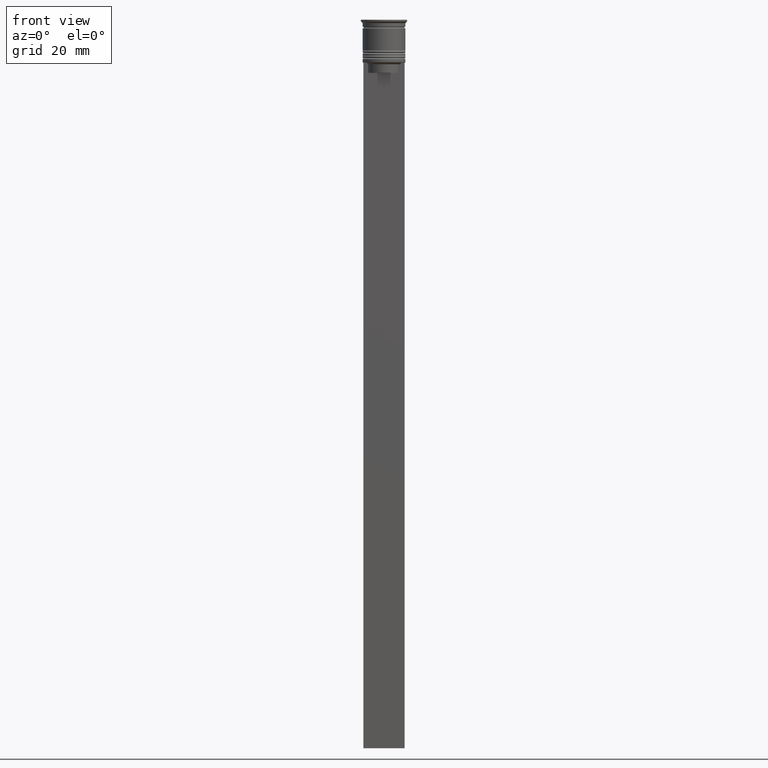
[diagram: clean part render]
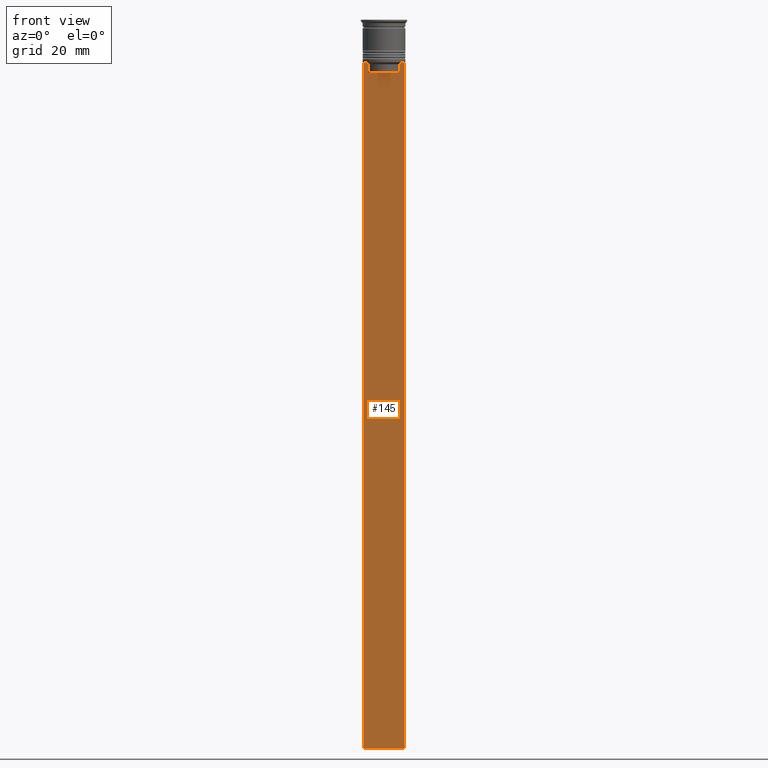
[diagram: same view with one face highlighted and labeled with its STEP entity id]
A machine part, front view. The second image highlights one B-rep face of the part: STEP entity #145.
In plain terms, the highlighted planar face has unit normal (0, -1, -0).
Its self-contained STEP definition (entity closure, byte-faithful):
#49 = ORIENTED_EDGE ( 'NONE', *, *, #2028, .F. ) ;
#50 = DIRECTION ( 'NONE',  ( 1.000000000000000000, 0.000000000000000000, 0.000000000000000000 ) ) ;
#51 = DIRECTION ( 'NONE',  ( -0.000000000000000000, -0.000000000000000000, 1.000000000000000000 ) ) ;
#71 = VECTOR ( 'NONE', #867, 1000.000000000000000 ) ;
#80 = CARTESIAN_POINT ( 'NONE',  ( -4.623040125285526436, -0.5000000000000017764, 0.000000000000000000 ) ) ;
#95 = ORIENTED_EDGE ( 'NONE', *, *, #628, .F. ) ;
#110 = VECTOR ( 'NONE', #1191, 1000.000000000000000 ) ;
#128 = LINE ( 'NONE', #293, #71 ) ;
#143 = VERTEX_POINT ( 'NONE', #1484 ) ;
#145 = ADVANCED_FACE ( 'NONE', ( #1665 ), #407, .T. ) ;
#201 = LINE ( 'NONE', #2043, #245 ) ;
#232 = LINE ( 'NONE', #1876, #2307 ) ;
#234 = CARTESIAN_POINT ( 'NONE',  ( 4.958169719475987947, -0.5000000000000017764, -12.66670967060858111 ) ) ;
#239 = VECTOR ( 'NONE', #1704, 1000.000000000000000 ) ;
#245 = VECTOR ( 'NONE', #1871, 1000.000000000000000 ) ;
#269 = VERTEX_POINT ( 'NONE', #1969 ) ;
#293 = CARTESIAN_POINT ( 'NONE',  ( 6.000000000000016875, -0.5000000000000017764, -212.5000000000000284 ) ) ;
#352 = LINE ( 'NONE', #391, #1230 ) ;
#358 = CARTESIAN_POINT ( 'NONE',  ( 6.000000000000016875, -0.5000000000000017764, -12.50000000000000000 ) ) ;
#381 = EDGE_LOOP ( 'NONE', ( #479, #49, #2052, #463, #95, #1526, #708, #1844, #907, #521 ) ) ;
#387 = B_SPLINE_CURVE_WITH_KNOTS ( 'NONE', 3,
 ( #2075, #979, #234, #1341 ),
 .UNSPECIFIED., .F., .F.,
 ( 4, 4 ),
 ( 0.02203698174624552780, 0.02275222543365896383 ),
 .UNSPECIFIED. ) ;
#391 = CARTESIAN_POINT ( 'NONE',  ( 4.623040125285526436, -0.5000000000000017764, 0.000000000000000000 ) ) ;
#407 = PLANE ( 'NONE',  #2211 ) ;
#410 = VERTEX_POINT ( 'NONE', #509 ) ;
#421 = CARTESIAN_POINT ( 'NONE',  ( -4.623040125285526436, -0.5000000000000017764, -13.00000000000000178 ) ) ;
#463 = ORIENTED_EDGE ( 'NONE', *, *, #1572, .F. ) ;
#479 = ORIENTED_EDGE ( 'NONE', *, *, #566, .F. ) ;
#509 = CARTESIAN_POINT ( 'NONE',  ( -5.999999999999983125, -0.5000000000000017764, -12.50000000000000000 ) ) ;
#521 = ORIENTED_EDGE ( 'NONE', *, *, #631, .F. ) ;
#566 = EDGE_CURVE ( 'NONE', #1280, #2275, #1990, .T. ) ;
#628 = EDGE_CURVE ( 'NONE', #1694, #143, #2044, .T. ) ;
#631 = EDGE_CURVE ( 'NONE', #2275, #1077, #1137, .T. ) ;
#708 = ORIENTED_EDGE ( 'NONE', *, *, #2248, .F. ) ;
#763 = CARTESIAN_POINT ( 'NONE',  ( 6.000000000000016875, -0.5000000000000017764, -0.4584054212077061097 ) ) ;
#782 = DIRECTION ( 'NONE',  ( 0.000000000000000000, -1.000000000000000000, -0.000000000000000000 ) ) ;
#797 = CARTESIAN_POINT ( 'NONE',  ( -4.958169823806760412, -0.5000000000000017764, -12.66670956677067927 ) ) ;
#826 = VERTEX_POINT ( 'NONE', #2185 ) ;
#842 = VECTOR ( 'NONE', #1496, 1000.000000000000000 ) ;
#867 = DIRECTION ( 'NONE',  ( -1.000000000000000000, 0.000000000000000000, 0.000000000000000000 ) ) ;
#907 = ORIENTED_EDGE ( 'NONE', *, *, #1092, .F. ) ;
#945 = LINE ( 'NONE', #1670, #1450 ) ;
#979 = CARTESIAN_POINT ( 'NONE',  ( 4.790630799407577634, -0.5000000000000017764, -12.83338098686238915 ) ) ;
#1002 = LINE ( 'NONE', #2300, #110 ) ;
#1029 = EDGE_CURVE ( 'NONE', #410, #269, #201, .T. ) ;
#1077 = VERTEX_POINT ( 'NONE', #1291 ) ;
#1092 = EDGE_CURVE ( 'NONE', #1077, #1887, #945, .T. ) ;
#1116 = CARTESIAN_POINT ( 'NONE',  ( -4.623040125285526436, -0.5000000000000017764, -13.00000000000000178 ) ) ;
#1119 = DIRECTION ( 'NONE',  ( 1.000000000000000000, 0.000000000000000000, 0.000000000000000000 ) ) ;
#1137 = LINE ( 'NONE', #80, #842 ) ;
#1161 = VERTEX_POINT ( 'NONE', #1944 ) ;
#1191 = DIRECTION ( 'NONE',  ( 1.000000000000000000, 0.000000000000000000, 0.000000000000000000 ) ) ;
#1230 = VECTOR ( 'NONE', #51, 1000.000000000000000 ) ;
#1280 = VERTEX_POINT ( 'NONE', #2027 ) ;
#1291 = CARTESIAN_POINT ( 'NONE',  ( -4.623040125285526436, -0.5000000000000022204, -15.50000000000000000 ) ) ;
#1341 = CARTESIAN_POINT ( 'NONE',  ( 5.125670687822231564, -0.5000000000000017764, -12.50000000000000000 ) ) ;
#1419 = EDGE_CURVE ( 'NONE', #826, #1694, #232, .T. ) ;
#1450 = VECTOR ( 'NONE', #50, 1000.000000000000000 ) ;
#1484 = CARTESIAN_POINT ( 'NONE',  ( 6.000000000000016875, -0.5000000000000017764, -212.5000000000000284 ) ) ;
#1496 = DIRECTION ( 'NONE',  ( 0.000000000000000000, 0.000000000000000000, -1.000000000000000000 ) ) ;
#1526 = ORIENTED_EDGE ( 'NONE', *, *, #1419, .F. ) ;
#1530 = CARTESIAN_POINT ( 'NONE',  ( 4.623040125285526436, -0.5000000000000022204, -15.50000000000000000 ) ) ;
#1572 = EDGE_CURVE ( 'NONE', #143, #269, #128, .T. ) ;
#1665 = FACE_OUTER_BOUND ( 'NONE', #381, .T. ) ;
#1670 = CARTESIAN_POINT ( 'NONE',  ( 0.000000000000000000, -0.5000000000000022204, -15.50000000000000000 ) ) ;
#1689 = CARTESIAN_POINT ( 'NONE',  ( -4.790630915080664742, -0.5000000000000017764, -12.83338087185995491 ) ) ;
#1694 = VERTEX_POINT ( 'NONE', #358 ) ;
#1704 = DIRECTION ( 'NONE',  ( 0.000000000000000000, 0.000000000000000000, -1.000000000000000000 ) ) ;
#1844 = ORIENTED_EDGE ( 'NONE', *, *, #2234, .F. ) ;
#1871 = DIRECTION ( 'NONE',  ( 0.000000000000000000, 0.000000000000000000, -1.000000000000000000 ) ) ;
#1876 = CARTESIAN_POINT ( 'NONE',  ( 6.000000000000016875, -0.5000000000000017764, -12.50000000000000000 ) ) ;
#1887 = VERTEX_POINT ( 'NONE', #1530 ) ;
#1905 = CARTESIAN_POINT ( 'NONE',  ( 6.000000000000016875, -0.5000000000000017764, -0.4584054212077061097 ) ) ;
#1944 = CARTESIAN_POINT ( 'NONE',  ( 4.623040125285526436, -0.5000000000000017764, -13.00000000000000178 ) ) ;
#1969 = CARTESIAN_POINT ( 'NONE',  ( -5.999999999999983125, -0.5000000000000017764, -212.5000000000000284 ) ) ;
#1990 = B_SPLINE_CURVE_WITH_KNOTS ( 'NONE', 3,
 ( #2036, #797, #1689, #1116 ),
 .UNSPECIFIED., .F., .F.,
 ( 4, 4 ),
 ( 0.008759809102772709091, 0.009468778395565353653 ),
 .UNSPECIFIED. ) ;
#2027 = CARTESIAN_POINT ( 'NONE',  ( -5.125670687822231564, -0.5000000000000017764, -12.50000000000000000 ) ) ;
#2028 = EDGE_CURVE ( 'NONE', #410, #1280, #1002, .T. ) ;
#2036 = CARTESIAN_POINT ( 'NONE',  ( -5.125670687822231564, -0.5000000000000017764, -12.50000000000000000 ) ) ;
#2043 = CARTESIAN_POINT ( 'NONE',  ( -5.999999999999983125, -0.5000000000000017764, -0.4584054212077061097 ) ) ;
#2044 = LINE ( 'NONE', #763, #239 ) ;
#2052 = ORIENTED_EDGE ( 'NONE', *, *, #1029, .T. ) ;
#2075 = CARTESIAN_POINT ( 'NONE',  ( 4.623040125285526436, -0.5000000000000017764, -13.00000000000000178 ) ) ;
#2185 = CARTESIAN_POINT ( 'NONE',  ( 5.125670687822231564, -0.5000000000000017764, -12.50000000000000000 ) ) ;
#2211 = AXIS2_PLACEMENT_3D ( 'NONE', #1905, #782, #2230 ) ;
#2230 = DIRECTION ( 'NONE',  ( 0.000000000000000000, 0.000000000000000000, -1.000000000000000000 ) ) ;
#2234 = EDGE_CURVE ( 'NONE', #1887, #1161, #352, .T. ) ;
#2248 = EDGE_CURVE ( 'NONE', #1161, #826, #387, .T. ) ;
#2275 = VERTEX_POINT ( 'NONE', #421 ) ;
#2300 = CARTESIAN_POINT ( 'NONE',  ( 6.000000000000016875, -0.5000000000000017764, -12.50000000000000000 ) ) ;
#2307 = VECTOR ( 'NONE', #1119, 1000.000000000000000 ) ;